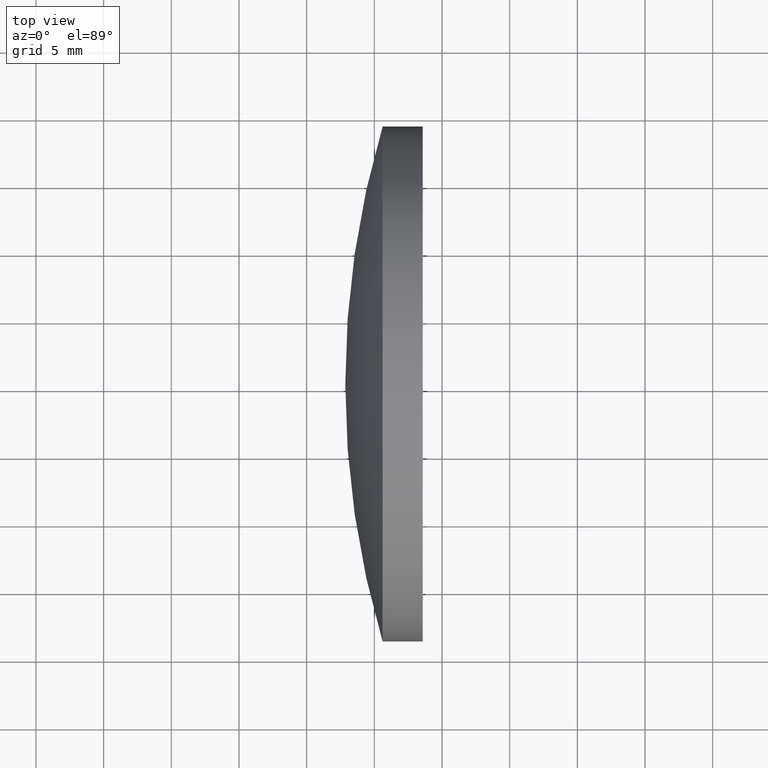
[diagram: clean part render]
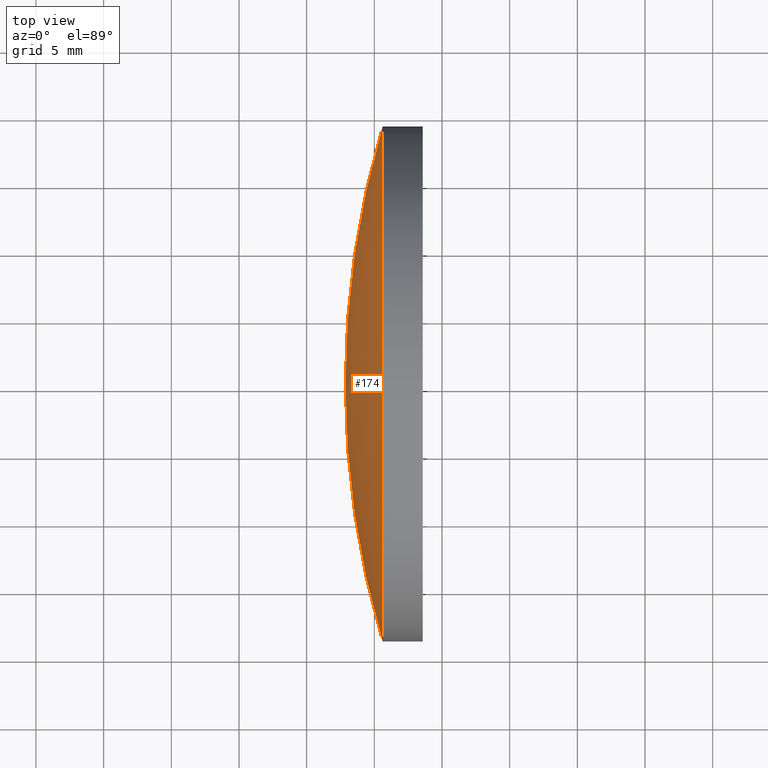
[diagram: same view with one face highlighted and labeled with its STEP entity id]
A machine part, top view. The second image highlights one B-rep face of the part: STEP entity #174.
In plain terms, the highlighted spherical surface has radius 67 mm.
Its self-contained STEP definition (entity closure, byte-faithful):
#9 = CARTESIAN_POINT ( 'NONE',  ( 125.6133060406054900, 46.19184047094029200, -2.329890535377837100E-015 ) ) ;
#27 = DIRECTION ( 'NONE',  ( -0.0000000000000000000, 0.0000000000000000000, -1.000000000000000000 ) ) ;
#29 = VERTEX_POINT ( 'NONE', #140 ) ;
#30 = CIRCLE ( 'NONE', #184, 67.00000000000002800 ) ;
#31 = VERTEX_POINT ( 'NONE', #87 ) ;
#32 = DIRECTION ( 'NONE',  ( 0.0000000000000000000, -1.000000000000000000, 0.0000000000000000000 ) ) ;
#44 = CARTESIAN_POINT ( 'NONE',  ( 189.8554213155557900, 65.21684047094031200, 0.0000000000000000000 ) ) ;
#47 = AXIS2_PLACEMENT_3D ( 'NONE', #44, #27, #162 ) ;
#53 = AXIS2_PLACEMENT_3D ( 'NONE', #85, #185, #32 ) ;
#64 = CIRCLE ( 'NONE', #53, 19.02499999999998100 ) ;
#66 = CIRCLE ( 'NONE', #152, 67.00000000000002800 ) ;
#74 = EDGE_CURVE ( 'NONE', #136, #31, #64, .T. ) ;
#79 = DIRECTION ( 'NONE',  ( -8.496118506040342700E-032, 1.224646799147353200E-016, -1.000000000000000000 ) ) ;
#85 = CARTESIAN_POINT ( 'NONE',  ( 125.6133060406054900, 65.21684047094032600, 0.0000000000000000000 ) ) ;
#87 = CARTESIAN_POINT ( 'NONE',  ( 125.6133060406054900, 84.24184047094030300, 0.0000000000000000000 ) ) ;
#88 = ORIENTED_EDGE ( 'NONE', *, *, #74, .T. ) ;
#106 = CARTESIAN_POINT ( 'NONE',  ( 189.8554213155557900, 65.21684047094031200, 0.0000000000000000000 ) ) ;
#122 = EDGE_LOOP ( 'NONE', ( #148, #88, #156 ) ) ;
#125 = DIRECTION ( 'NONE',  ( -0.0000000000000000000, 0.0000000000000000000, 1.000000000000000000 ) ) ;
#136 = VERTEX_POINT ( 'NONE', #9 ) ;
#140 = CARTESIAN_POINT ( 'NONE',  ( 122.8554213155557700, 65.21684047094026900, 0.0000000000000000000 ) ) ;
#148 = ORIENTED_EDGE ( 'NONE', *, *, #187, .F. ) ;
#149 = DIRECTION ( 'NONE',  ( 0.0000000000000000000, 1.000000000000000000, 1.224646799147353000E-016 ) ) ;
#150 = SPHERICAL_SURFACE ( 'NONE', #47, 67.00000000000002800 ) ;
#152 = AXIS2_PLACEMENT_3D ( 'NONE', #106, #125, #178 ) ;
#156 = ORIENTED_EDGE ( 'NONE', *, *, #172, .T. ) ;
#162 = DIRECTION ( 'NONE',  ( -8.285246452426537700E-016, 1.000000000000000000, 0.0000000000000000000 ) ) ;
#172 = EDGE_CURVE ( 'NONE', #31, #29, #66, .T. ) ;
#174 = ADVANCED_FACE ( 'NONE', ( #175 ), #150, .T. ) ;
#175 = FACE_OUTER_BOUND ( 'NONE', #122, .T. ) ;
#178 = DIRECTION ( 'NONE',  ( 1.000000000000000000, 0.0000000000000000000, 0.0000000000000000000 ) ) ;
#179 = CARTESIAN_POINT ( 'NONE',  ( 189.8554213155557900, 65.21684047094031200, 0.0000000000000000000 ) ) ;
#184 = AXIS2_PLACEMENT_3D ( 'NONE', #179, #79, #149 ) ;
#185 = DIRECTION ( 'NONE',  ( -1.000000000000000000, -6.937607244762875000E-016, -0.0000000000000000000 ) ) ;
#187 = EDGE_CURVE ( 'NONE', #136, #29, #30, .T. ) ;